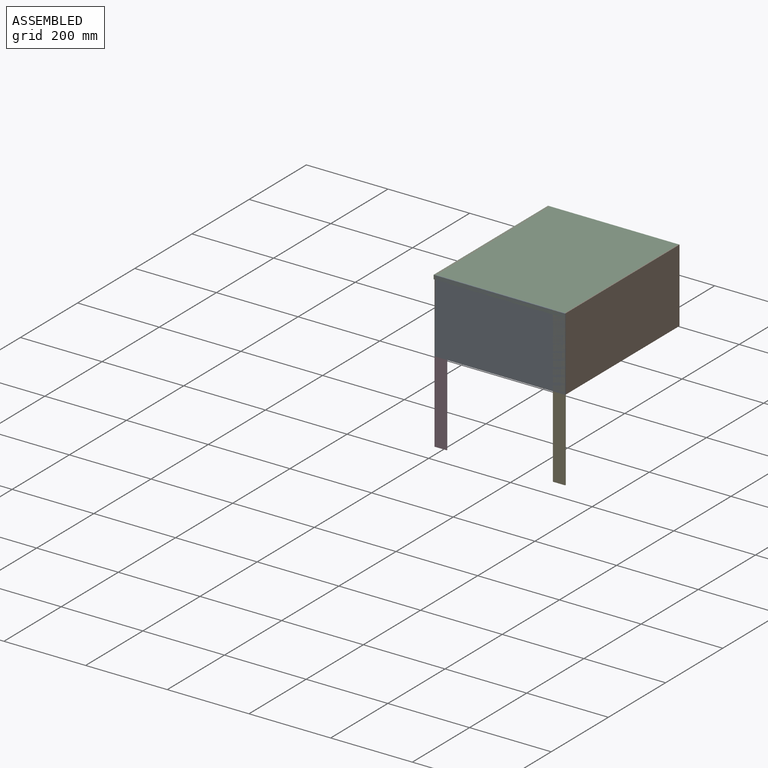
[diagram: assembled view]
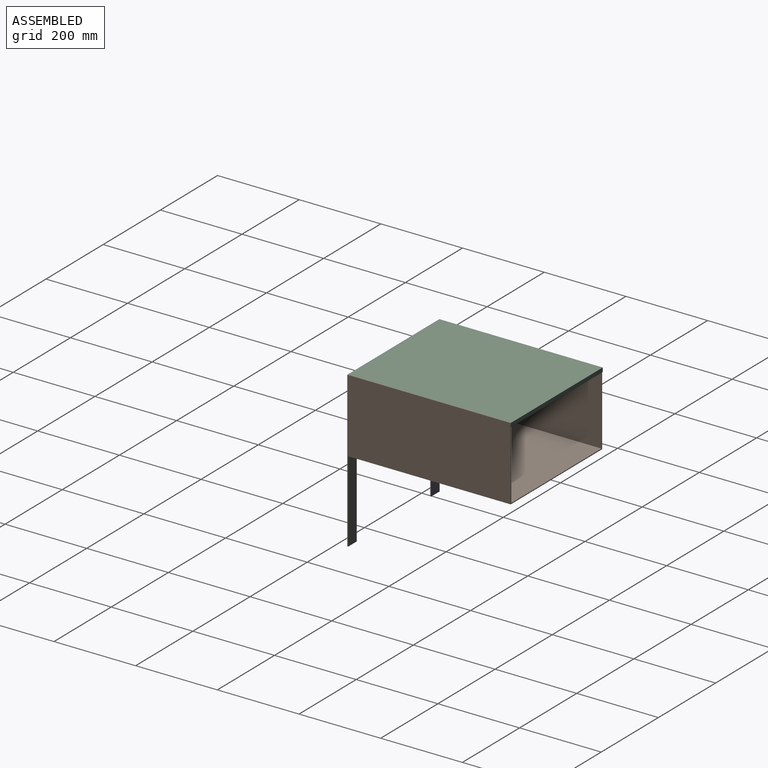
[diagram: assembled view, second angle]
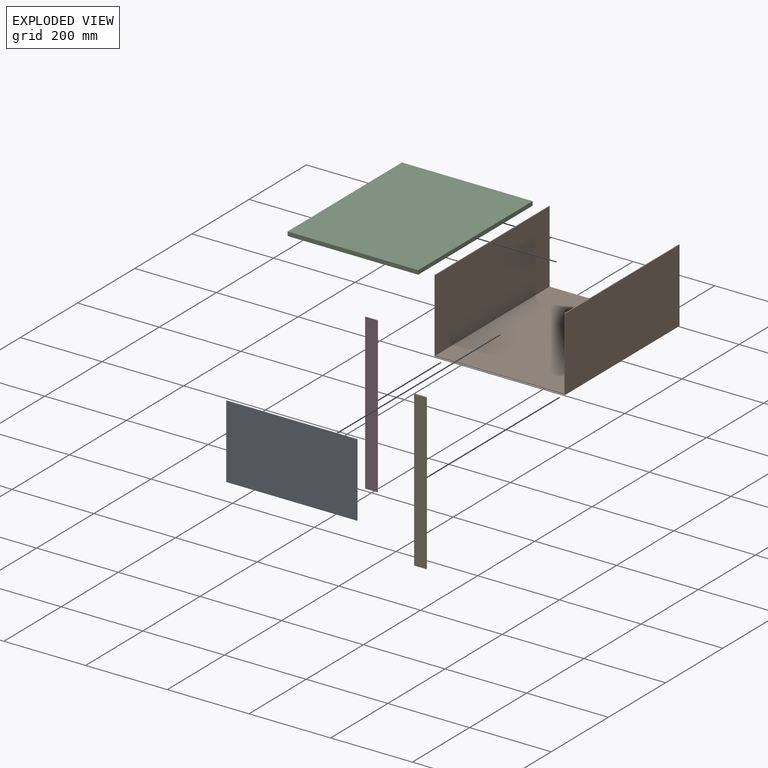
[diagram: exploded view]
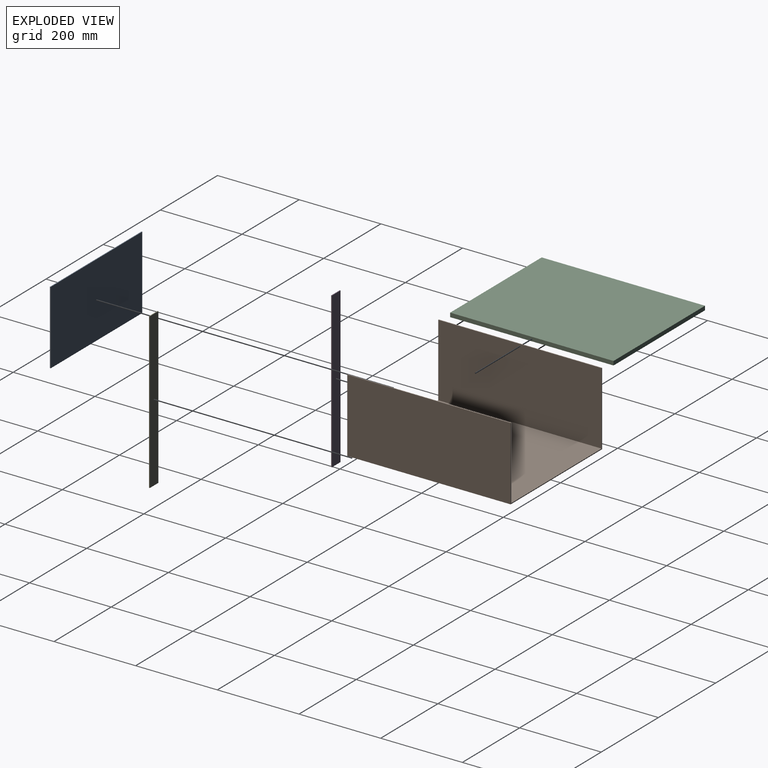
[diagram: exploded view, second angle]
ASSEMBLY  parts=5 mates=4
PART A: 6 faces, bbox 320x180x2 mm
  f0: plane 180x2mm, normal (-1,0,0), area 360mm2, adj f1,f3,f4,f5
  f1: plane 320x2mm, normal (0,-1,0), area 640mm2, adj f0,f2,f4,f5
  f2: plane 180x2mm, normal (1,0,0), area 360mm2, adj f1,f3,f4,f5
  f3: plane 320x2mm, normal (0,1,0), area 640mm2, adj f0,f2,f4,f5
  f4: plane 320x180mm, normal (0,0,1), area 57600mm2, adj f0,f1,f2,f3
  f5: plane 320x180mm, normal (0,0,-1), area 57600mm2, adj f0,f1,f2,f3
PART B: 10 faces, bbox 320x400x180 mm
  f0: plane 400x2mm, normal (0,0,1), area 800mm2, adj f1,f7,f8,f9
  f1: plane 400x180mm, normal (-1,0,0), area 72000mm2, adj f0,f2,f8,f9
  f2: plane 400x320mm, normal (0,0,-1), area 128000mm2, adj f1,f3,f8,f9
  f3: plane 400x180mm, normal (1,0,0), area 72000mm2, adj f2,f4,f8,f9
  f4: plane 400x2mm, normal (0,0,1), area 800mm2, adj f3,f5,f8,f9
  f5: plane 400x178mm, normal (-1,0,0), area 71200mm2, adj f4,f6,f8,f9
  f6: plane 400x316mm, normal (0,0,1), area 126400mm2, adj f5,f7,f8,f9
  f7: plane 400x178mm, normal (1,0,0), area 71200mm2, adj f0,f6,f8,f9
  f8: plane 320x180mm, normal (0,-1,0), area 1352mm2, adj f0,f1,f2,f3,f4,f5,f6,f7
  f9: plane 320x180mm, normal (0,1,0), area 1352mm2, adj f0,f1,f2,f3,f4,f5,f6,f7
PART C: 6 faces, bbox 320x400x10 mm
  f0: plane 320x10mm, normal (0,-1,0), area 3200mm2, adj f1,f3,f4,f5
  f1: plane 400x10mm, normal (1,0,0), area 4000mm2, adj f0,f2,f4,f5
  f2: plane 320x10mm, normal (0,1,0), area 3200mm2, adj f1,f3,f4,f5
  f3: plane 400x10mm, normal (-1,0,0), area 4000mm2, adj f0,f2,f4,f5
  f4: plane 400x320mm, normal (0,0,1), area 128000mm2, adj f0,f1,f2,f3
  f5: plane 400x320mm, normal (0,0,-1), area 128000mm2, adj f0,f1,f2,f3
PART D: 6 faces, bbox 30x380x2 mm
  f0: plane 380x2mm, normal (-1,0,0), area 760mm2, adj f1,f3,f4,f5
  f1: plane 30x2mm, normal (0,-1,0), area 60mm2, adj f0,f2,f4,f5
  f2: plane 380x2mm, normal (1,0,0), area 760mm2, adj f1,f3,f4,f5
  f3: plane 30x2mm, normal (0,1,0), area 60mm2, adj f0,f2,f4,f5
  f4: plane 380x30mm, normal (0,0,1), area 11400mm2, adj f0,f1,f2,f3
  f5: plane 380x30mm, normal (0,0,-1), area 11400mm2, adj f0,f1,f2,f3
PART E: same geometry as D
PLACE A rot(axis=(0,-0.71,0.71),180deg) t=(157.22,-363.08,-40.57)mm
PLACE B t=(129.48,34.92,-40.53)mm
PLACE C t=(147.58,-165.08,39.43)mm
PLACE D rot(axis=(0,-0.71,0.71),180deg) t=(4.58,-363.08,-140.57)mm
PLACE E rot(axis=(0,-0.71,0.71),180deg) t=(294.58,-363.08,-140.57)mm
MATE fastened D.f4 <-> A.f4  axis (0,-1,0) through (-10.42,-365.08,49.43)mm
MATE fastened C.f1 <-> B.f5  axis (1,0,0) through (307.58,-365.08,49.43)mm
MATE fastened E.f4 <-> A.f4  axis (0,-1,0) through (309.58,-365.08,49.43)mm
MATE fastened A.f4 <-> B.f8  axis (0,-1,0) through (309.58,-365.08,49.43)mm
